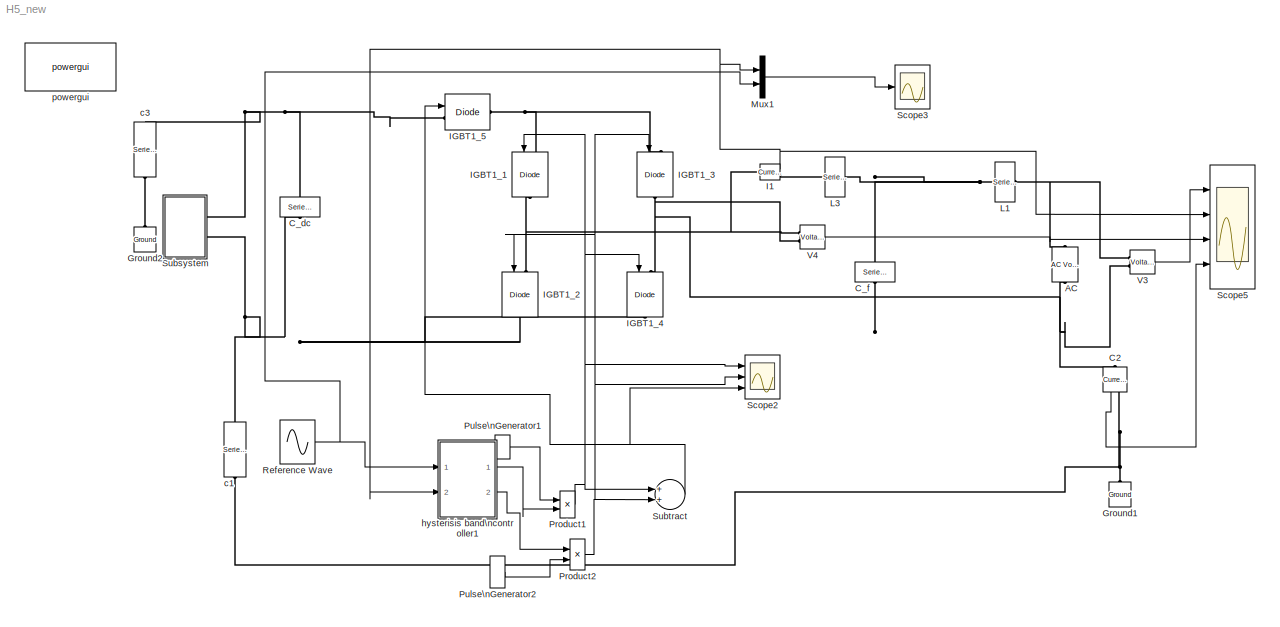
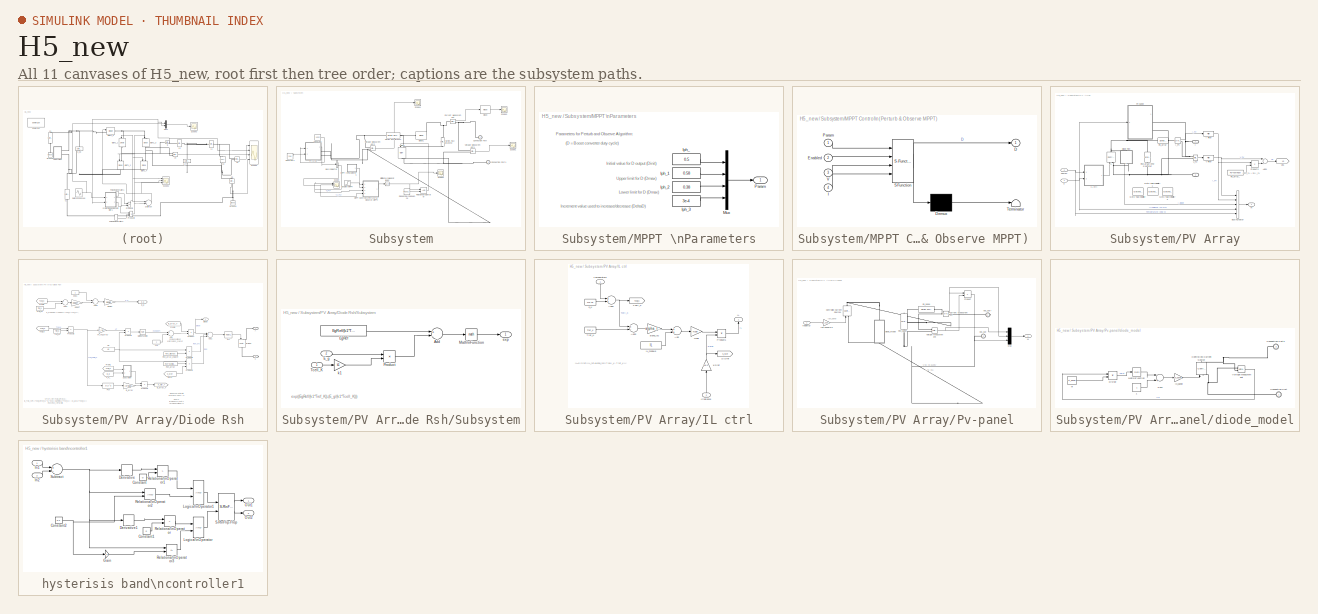
[diagram: thumbnail index - all 11 canvases of the model, root first then tree order]
MODEL H5_new
KIND model
BLOCK [Reference] AC  REF=powerlib/Electrical\nSources/AC Voltage Source
  Amplitude = 220
  BusType = swing
  Frequency = 50
  Measurements = Voltage
  Phase = 0
  Ports = [0, 0, 0, 0, 0, 1, 1]
  Pref = 10e3
  Qmax = +inf
  Qmin = -inf
  Qref = 0
  SID = 1
  SampleTime = 0
  SourceBlock = powerlib/Electrical\nSources/AC Voltage Source
  SourceProductBaseCode = PS
  SourceProductName = Simscape Electrical
  SourceType = AC Voltage Source
BLOCK [Reference] C2  REF=powerlib/Measurements/Current Measurement
  OutputType = Complex
  PSBequivalent = 0
  PhasorSimulation = off
  Ports = [0, 1, 0, 0, 0, 1, 1]
  SID = 2
  SourceBlock = powerlib/Measurements/Current Measurement
  SourceProductBaseCode = PS
  SourceProductName = Simscape Electrical
  SourceType = Current Measurement
BLOCK [Reference] C_dc  REF=powerlib/Elements/Series RLC Branch
  BranchType = RC
  Capacitance = 250e-6
  Inductance = 4e-3
  InitialCurrent = 0
  InitialVoltage = 0
  LConnTagsString = __new0
  Measurements = None
  Ports = [0, 0, 0, 0, 0, 1, 1]
  RConnTagsString = __new0
  Resistance = 1e-3
  SID = 3
  SetiL0 = off
  Setx0 = off
  SourceBlock = powerlib/Elements/Series RLC Branch
  SourceProductBaseCode = PS
  SourceProductName = Simscape Electrical
  SourceType = Series RLC Branch
BLOCK [Reference] C_f  REF=powerlib/Elements/Series RLC Branch
  BranchType = RC
  Capacitance = 3.45e-6
  Inductance = 4e-3
  InitialCurrent = 0
  InitialVoltage = 0
  LConnTagsString = __new0
  Measurements = None
  Ports = [0, 0, 0, 0, 0, 1, 1]
  RConnTagsString = __new0
  Resistance = 1e-3
  SID = 4
  SetiL0 = off
  Setx0 = off
  SourceBlock = powerlib/Elements/Series RLC Branch
  SourceProductBaseCode = PS
  SourceProductName = Simscape Electrical
  SourceType = Series RLC Branch
BLOCK [Reference] Ground1  REF=powerlib/Elements/Ground
  LConnTagsString = a
  Ports = [0, 0, 0, 0, 0, 1]
  SID = 5
  SourceBlock = powerlib/Elements/Ground
  SourceProductBaseCode = PS
  SourceProductName = Simscape Electrical
  SourceType = Ground
BLOCK [Reference] Ground2  REF=powerlib/Elements/Ground
  LConnTagsString = a
  Ports = [0, 0, 0, 0, 0, 1]
  SID = 6
  SourceBlock = powerlib/Elements/Ground
  SourceProductBaseCode = PS
  SourceProductName = Simscape Electrical
  SourceType = Ground
BLOCK [Reference] I1  REF=powerlib/Measurements/Current Measurement
  AttributesFormatString = \\n
  OutputType = Magnitude
  PSBequivalent = 0
  PhasorSimulation = off
  Ports = [0, 1, 0, 0, 0, 1, 1]
  SID = 7
  SourceBlock = powerlib/Measurements/Current Measurement
  SourceProductBaseCode = PS
  SourceProductName = Simscape Electrical
  SourceType = Current Measurement
  Tag = PoWeRsYsTeMmEaSuReMeNt
BLOCK [Reference] IGBT1_1  REF=powerlib/Power\nElectronics/IGBT//Diode
  Cs = inf
  Measurements = off
  Ports = [1, 0, 0, 0, 0, 1, 1]
  Ron = 1e-3
  Rs = 1e5
  SID = 9
  SourceBlock = powerlib/Power\nElectronics/IGBT//Diode
  SourceProductBaseCode = PS
  SourceProductName = Simscape Electrical
  SourceType = IGBT/Diode
BLOCK [Reference] IGBT1_2  REF=powerlib/Power\nElectronics/IGBT//Diode
  Cs = inf
  Measurements = off
  Ports = [1, 0, 0, 0, 0, 1, 1]
  Ron = 1e-3
  Rs = 1e5
  SID = 10
  SourceBlock = powerlib/Power\nElectronics/IGBT//Diode
  SourceProductBaseCode = PS
  SourceProductName = Simscape Electrical
  SourceType = IGBT/Diode
BLOCK [Reference] IGBT1_3  REF=powerlib/Power\nElectronics/IGBT//Diode
  Cs = inf
  Measurements = off
  Ports = [1, 0, 0, 0, 0, 1, 1]
  Ron = 1e-3
  Rs = 1e5
  SID = 11
  SourceBlock = powerlib/Power\nElectronics/IGBT//Diode
  SourceProductBaseCode = PS
  SourceProductName = Simscape Electrical
  SourceType = IGBT/Diode
BLOCK [Reference] IGBT1_4  REF=powerlib/Power\nElectronics/IGBT//Diode
  Cs = inf
  Measurements = off
  Ports = [1, 0, 0, 0, 0, 1, 1]
  Ron = 1e-3
  Rs = 1e5
  SID = 12
  SourceBlock = powerlib/Power\nElectronics/IGBT//Diode
  SourceProductBaseCode = PS
  SourceProductName = Simscape Electrical
  SourceType = IGBT/Diode
BLOCK [Reference] IGBT1_5  REF=powerlib/Power\nElectronics/IGBT//Diode
  Cs = inf
  Measurements = off
  Ports = [1, 0, 0, 0, 0, 1, 1]
  Ron = 1e-3
  Rs = 1e5
  SID = 13
  SourceBlock = powerlib/Power\nElectronics/IGBT//Diode
  SourceProductBaseCode = PS
  SourceProductName = Simscape Electrical
  SourceType = IGBT/Diode
BLOCK [Reference] L1  REF=powerlib/Elements/Series RLC Branch
  BranchType = RL
  Capacitance = 1e-6
  Inductance = 5.7e-3
  InitialCurrent = 0
  InitialVoltage = 0
  LConnTagsString = __new0
  Measurements = None
  Ports = [0, 0, 0, 0, 0, 1, 1]
  RConnTagsString = __new0
  Resistance = 1e-3
  SID = 14
  SetiL0 = off
  Setx0 = off
  SourceBlock = powerlib/Elements/Series RLC Branch
  SourceProductBaseCode = PS
  SourceProductName = Simscape Electrical
  SourceType = Series RLC Branch
BLOCK [Reference] L3  REF=powerlib/Elements/Series RLC Branch
  BranchType = RL
  Capacitance = 1e-6
  Inductance = 17.7e-3
  InitialCurrent = 0
  InitialVoltage = 0
  LConnTagsString = __new0
  Measurements = None
  Ports = [0, 0, 0, 0, 0, 1, 1]
  RConnTagsString = __new0
  Resistance = 1e-3
  SID = 15
  SetiL0 = off
  Setx0 = off
  SourceBlock = powerlib/Elements/Series RLC Branch
  SourceProductBaseCode = PS
  SourceProductName = Simscape Electrical
  SourceType = Series RLC Branch
BLOCK [Mux] Mux1
  DisplayOption = bar
  Inputs = 2
  Ports = [2, 1]
  SID = 16
BLOCK [Product] Product1
  InputSameDT = off
  OutDataTypeStr = Inherit: Inherit via internal rule
  Ports = [2, 1]
  SID = 17
  SaturateOnIntegerOverflow = off
BLOCK [Product] Product2
  InputSameDT = off
  OutDataTypeStr = Inherit: Inherit via internal rule
  Ports = [2, 1]
  SID = 18
  SaturateOnIntegerOverflow = off
BLOCK [DiscretePulseGenerator] Pulse\nGenerator1
  Period = 20e-3
  Ports = [0, 1]
  PulseType = Time based
  PulseWidth = 49.5
  SID = 19
BLOCK [DiscretePulseGenerator] Pulse\nGenerator2
  Period = 20e-3
  PhaseDelay = 10e-3
  Ports = [0, 1]
  PulseType = Time based
  PulseWidth = 49.5
  SID = 20
BLOCK [Sin] Reference Wave
  Amplitude = 2
  Frequency = 2*pi*50
  Ports = [0, 1]
  SID = 21
  SampleTime = 0
BLOCK [Scope] Scope2
  Floating = off
  NumInputPorts = 3
  Ports = [3]
  SID = 22
  ScopeSpecificationString = Simulink.scopes.TimeScopeBlockCfg('CurrentConfiguration', extmgr.ConfigurationSet(extmgr.Configuration('Core','General UI',true),extmgr.Configuration('Core','Source UI',true),extmgr.Configuration('Sources','WiredSimulink',true,'DataLogging',true,'DataLoggingVariableName','sps1phPWM1_str1','DataLoggingSaveFormat','StructureWithTime','DataLoggingMaxPoints','500000','DataLoggingDecimation','1','DataL...<+3149ch>
BLOCK [Scope] Scope3
  Floating = off
  NumInputPorts = 1
  Ports = [1]
  SID = 23
  ScopeSpecificationString = Simulink.scopes.TimeScopeBlockCfg('CurrentConfiguration', extmgr.ConfigurationSet(extmgr.Configuration('Core','General UI',true),extmgr.Configuration('Core','Source UI',true),extmgr.Configuration('Sources','WiredSimulink',true,'DataLogging',true,'DataLoggingVariableName','sps1phPWM1_str','DataLoggingSaveFormat','StructureWithTime','DataLoggingMaxPoints','500000','DataLoggingDecimation','1','DataLo...<+1919ch>
BLOCK [Scope] Scope5
  Floating = off
  NumInputPorts = 4
  Ports = [4]
  SID = 24
  ScopeSpecificationString = Simulink.scopes.TimeScopeBlockCfg('CurrentConfiguration', extmgr.ConfigurationSet(extmgr.Configuration('Core','General UI',true),extmgr.Configuration('Core','Source UI',true),extmgr.Configuration('Sources','WiredSimulink',true,'DataLogging',true,'DataLoggingVariableName','sps1phPWM1_str2','DataLoggingSaveFormat','StructureWithTime','DataLoggingMaxPoints','500000','DataLoggingDecimation','1','DataL...<+3899ch>
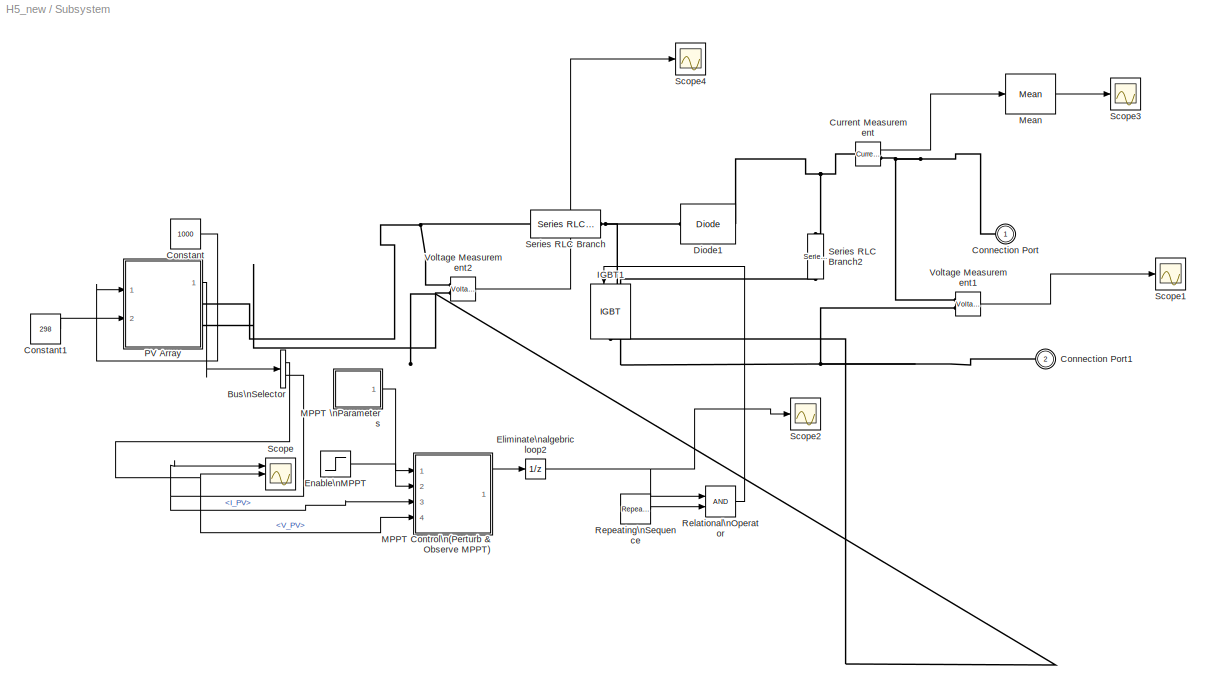
BLOCK [SubSystem] Subsystem
  Ports = [0, 0, 0, 0, 0, 0, 2]
  RequestExecContextInheritance = off
  SID = 152
BLOCK [BusSelector] Subsystem/Bus\nSelector
  OutputAsBus = off
  OutputSignals = V_PV,I_PV
  Ports = [1, 2]
  SID = 247
BLOCK [PMIOPort] Subsystem/Connection Port
  SID = 237
  Side = Right
BLOCK [PMIOPort] Subsystem/Connection Port1
  Port = 2
  SID = 238
  Side = Right
BLOCK [Constant] Subsystem/Constant
  SID = 153
  Value = 1000
BLOCK [Constant] Subsystem/Constant1
  SID = 244
  Value = 298
BLOCK [Reference] Subsystem/Current Measurement  REF=powerlib/Measurements/Current Measurement
  OutputType = Complex
  PSBequivalent = 0
  PhasorSimulation = off
  Ports = [0, 1, 0, 0, 0, 1, 1]
  SID = 240
  SourceBlock = powerlib/Measurements/Current Measurement
  SourceProductBaseCode = PS
  SourceProductName = Simscape Electrical
  SourceType = Current Measurement
  UserDataPersistent = on
BLOCK [Reference] Subsystem/Diode1  REF=powerlib/Power\nElectronics/Diode
  Cs = 250e-9
  IC = 0
  Lon = 0
  Measurements = off
  Ports = [0, 0, 0, 0, 0, 1, 1]
  Ron = 0.001
  Rs = 500
  SID = 155
  SourceBlock = powerlib/Power\nElectronics/Diode
  SourceProductBaseCode = PS
  SourceProductName = Simscape Electrical
  SourceType = Diode
  UseSnubber = off
  Vf = 0.8
BLOCK [UnitDelay] Subsystem/Eliminate\nalgebric loop2
  InputProcessing = Elements as channels (sample based)
  SID = 156
  SampleTime = Ts_Control
BLOCK [Step] Subsystem/Enable\nMPPT
  SID = 157
  SampleTime = 0
  Time = 0.3
BLOCK [Reference] Subsystem/IGBT1  REF=powerlib/Power\nElectronics/IGBT
  Cs = inf
  IC = 0
  Lon = 0
  Measurements = off
  Ports = [1, 0, 0, 0, 0, 1, 1]
  Ron = 0.001
  Rs = 1e5
  SID = 161
  SourceBlock = powerlib/Power\nElectronics/IGBT
  SourceProductBaseCode = PS
  SourceProductName = Simscape Electrical
  SourceType = IGBT
  Tf = 1e-6
  Tt = 2e-6
  Vf = 1
BLOCK [SubSystem] Subsystem/MPPT Control\n(Perturb & Observe MPPT) 
  ErrorFcn = Stateflow.Translate.translate
  PermitHierarchicalResolution = ExplicitOnly
  Ports = [4, 1]
  RequestExecContextInheritance = off
  SFBlockType = MATLAB Function
  SID = 175
  TreatAsAtomicUnit = on
BLOCK [Demux] Subsystem/MPPT Control\n(Perturb & Observe MPPT) / Demux 
  Outputs = 1
  Ports = [1, 1]
  SID = 175::118
BLOCK [S-Function] Subsystem/MPPT Control\n(Perturb & Observe MPPT) / SFunction 
  EnableBusSupport = on
  FunctionName = sf_sfun
  PortCounts = [4 2]
  Ports = [4, 2]
  SFcnIsStateOwnerBlock = off
  SFunctionDeploymentMode = off
  SID = 175::117
  Tag = Stateflow S-Function H5_new 4
BLOCK [Terminator] Subsystem/MPPT Control\n(Perturb & Observe MPPT) / Terminator 
  SID = 175::119
BLOCK [Outport] Subsystem/MPPT Control\n(Perturb & Observe MPPT) /D
  IconDisplay = Port number
  SID = 175::35
BLOCK [Inport] Subsystem/MPPT Control\n(Perturb & Observe MPPT) /Enabled
  IconDisplay = Port number
  Port = 2
  SID = 175::91
BLOCK [Inport] Subsystem/MPPT Control\n(Perturb & Observe MPPT) /I
  IconDisplay = Port number
  Port = 4
  SID = 175::1
BLOCK [Inport] Subsystem/MPPT Control\n(Perturb & Observe MPPT) /Param
  IconDisplay = Port number
  SID = 175::90
BLOCK [Inport] Subsystem/MPPT Control\n(Perturb & Observe MPPT) /V
  IconDisplay = Port number
  Port = 3
  SID = 175::85
BLOCK [SubSystem] Subsystem/MPPT \nParameters
  Ports = [0, 1]
  RequestExecContextInheritance = off
  SID = 162
BLOCK [Constant] Subsystem/MPPT \nParameters/Iph_
  SID = 163
  Value = 0.5
BLOCK [Constant] Subsystem/MPPT \nParameters/Iph_1
  SID = 164
  Value = 0.58
BLOCK [Constant] Subsystem/MPPT \nParameters/Iph_2
  SID = 165
  Value = 0.38
BLOCK [Constant] Subsystem/MPPT \nParameters/Iph_3
  SID = 166
  Value = 3e-4
BLOCK [Mux] Subsystem/MPPT \nParameters/Mux
  DisplayOption = bar
  Ports = [4, 1]
  SID = 167
BLOCK [Outport] Subsystem/MPPT \nParameters/Param
  IconDisplay = Port number
  SID = 168
BLOCK [Reference] Subsystem/Mean  REF=powerlib_meascontrol/Measurements/Mean
  Freq = 50
  Ports = [1, 1]
  SID = 242
  SourceBlock = powerlib_meascontrol/Measurements/Mean
  SourceProductBaseCode = PS
  SourceProductName = Simscape Electrical
  SourceType = Mean
  Ts = 5e-4
  Vinit = 0
BLOCK [SubSystem] Subsystem/PV Array
  AncestorBlock = re_lib/Solar/PV Array
  CloseFcn = sps_rtmsupport('CloseFcn',gcbh);
  CopyFcn = sps_rtmsupport('CopyFcn',gcbh);
  DeleteFcn = sps_rtmsupport('DeleteFcn',gcbh);
  DialogController = POWERSYS.PowerSysDialog
  LoadFcn = sps_rtmsupport('LoadFcn',gcbh);
  ModelCloseFcn = sps_rtmsupport('ModelCloseFcn',gcbh);
  NameChangeFcn = sps_rtmsupport('NameChangeFcn',gcbh);
  OpenFcn = %assignin('base','PVMaskOpening',1);\n%open_system(gcb,'mask')\n%assignin('base','PVMaskOpening',0);\nsps_rtmsupport('OpenFcn',gcbh, [3 6 7 23]);
  Ports = [2, 1, 0, 0, 0, 0, 2]
  PostSaveFcn = sps_rtmsupport('PostSaveFcn',gcbh);
  PreCopyFcn = sps_rtmsupport('PreCopyFcn',gcbh);
  PreDeleteFcn = sps_rtmsupport('PreDeleteFcn',gcbh);
  PreSaveFcn = sps_rtmsupport('PreSaveFcn',gcbh);
  RequestExecContextInheritance = off
  SID = 243
  StartFcn = sps_rtmsupport('StartFcn',gcbh);
  StopFcn = sps_rtmsupport('StopFcn',gcbh);
  UndoDeleteFcn = sps_rtmsupport('UndoDeleteFcn',gcbh);
BLOCK [PMIOPort] Subsystem/PV Array/+
  SID = 243:333
  Side = Right
BLOCK [PMIOPort] Subsystem/PV Array/-
  Port = 2
  SID = 243:334
  Side = Right
BLOCK [Sum] Subsystem/PV Array/Add1
  InputSameDT = off
  OutDataTypeStr = Inherit: Inherit via internal rule
  Ports = [2, 1]
  SID = 243:584
  SaturateOnIntegerOverflow = off
BLOCK [BusCreator] Subsystem/PV Array/Bus\nCreator
  DisplayOption = bar
  InheritFromInputs = on
  Inputs = 5
  Ports = [5, 1]
  SID = 243:587
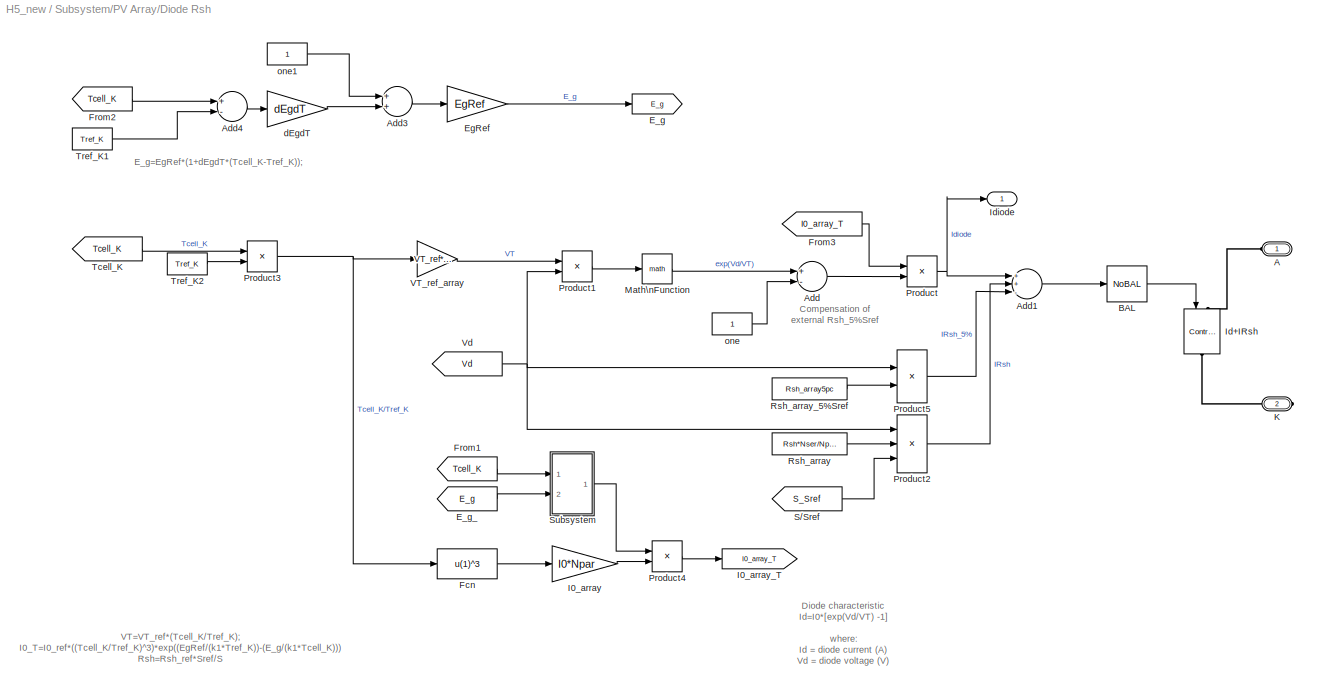
BLOCK [SubSystem] Subsystem/PV Array/Diode Rsh
  Ports = [0, 1, 0, 0, 0, 1, 1]
  RequestExecContextInheritance = off
  SID = 243:588
BLOCK [PMIOPort] Subsystem/PV Array/Diode Rsh/A
  SID = 243:655
  Side = Left
BLOCK [Sum] Subsystem/PV Array/Diode Rsh/Add
  InputSameDT = off
  Inputs = +-
  OutDataTypeStr = Inherit: Inherit via internal rule
  Ports = [2, 1]
  SID = 243:613
  SaturateOnIntegerOverflow = off
BLOCK [Sum] Subsystem/PV Array/Diode Rsh/Add1
  InputSameDT = off
  Inputs = ++-
  OutDataTypeStr = Inherit: Inherit via internal rule
  Ports = [3, 1]
  SID = 243:614
  SaturateOnIntegerOverflow = off
BLOCK [Sum] Subsystem/PV Array/Diode Rsh/Add3
  InputSameDT = off
  OutDataTypeStr = Inherit: Inherit via internal rule
  Ports = [2, 1]
  SID = 243:615
  SaturateOnIntegerOverflow = off
BLOCK [Sum] Subsystem/PV Array/Diode Rsh/Add4
  InputSameDT = off
  Inputs = +-
  OutDataTypeStr = Inherit: Inherit via internal rule
  Ports = [2, 1]
  SID = 243:616
  SaturateOnIntegerOverflow = off
BLOCK [Reference] Subsystem/PV Array/Diode Rsh/BAL  REF=spsPVarrayModel/NoBAL
  AllowZeroVariantControls = off
  GeneratePreprocessorConditionals = off
  Ports = [1, 1]
  PropagateVariantConditions = off
  SID = 243:1335
  ShowPortLabels = FromPortIcon
  SourceBlock = spsPVarrayModel/NoBAL
  SourceType = SubSystem
  SystemSampleTime = -1
  VariantControl = NoBAL
BLOCK [Goto] Subsystem/PV Array/Diode Rsh/E_g
  GotoTag = E_g
  SID = 243:617
BLOCK [From] Subsystem/PV Array/Diode Rsh/E_g_
  GotoTag = E_g
  SID = 243:618
BLOCK [Gain] Subsystem/PV Array/Diode Rsh/EgRef
  Gain = EgRef
  OutDataTypeStr = Inherit: Inherit via internal rule
  ParamDataTypeStr = Inherit: Inherit via internal rule
  SID = 243:619
  SaturateOnIntegerOverflow = off
BLOCK [Fcn] Subsystem/PV Array/Diode Rsh/Fcn
  Expr = u(1)^3
  SID = 243:620
BLOCK [From] Subsystem/PV Array/Diode Rsh/From1
  GotoTag = Tcell_K
  SID = 243:621
  TagVisibility = scoped
BLOCK [From] Subsystem/PV Array/Diode Rsh/From2
  GotoTag = Tcell_K
  SID = 243:622
  TagVisibility = scoped
BLOCK [From] Subsystem/PV Array/Diode Rsh/From3
  GotoTag = I0_array_T
  SID = 243:623
BLOCK [Gain] Subsystem/PV Array/Diode Rsh/I0_array
  Gain = I0*Npar
  OutDataTypeStr = Inherit: Inherit via internal rule
  ParamDataTypeStr = Inherit: Inherit via internal rule
  SID = 243:624
  SaturateOnIntegerOverflow = off
BLOCK [Goto] Subsystem/PV Array/Diode Rsh/I0_array_T
  GotoTag = I0_array_T
  SID = 243:625
BLOCK [Reference] Subsystem/PV Array/Diode Rsh/Id+IRsh  REF=powerlib/Electrical\nSources/Controlled Current Source
  Amplitude = 0
  Frequency = 0
  Initialize = on
  Measurements = None
  Phase = 0
  Ports = [1, 0, 0, 0, 0, 1, 1]
  SID = 243:626
  SourceBlock = powerlib/Electrical\nSources/Controlled Current Source
  SourceProductBaseCode = PS
  SourceProductName = Simscape Electrical
  SourceType = Controlled Current Source
  Source_Type = AC
BLOCK [Outport] Subsystem/PV Array/Diode Rsh/Idiode
  IconDisplay = Port number
  SID = 243:657
BLOCK [PMIOPort] Subsystem/PV Array/Diode Rsh/K
  Port = 2
  SID = 243:656
  Side = Right
BLOCK [Math] Subsystem/PV Array/Diode Rsh/Math\nFunction
  Ports = [1, 1]
  SID = 243:627
BLOCK [Product] Subsystem/PV Array/Diode Rsh/Product
  InputSameDT = off
  OutDataTypeStr = Inherit: Inherit via internal rule
  Ports = [2, 1]
  SID = 243:628
  SaturateOnIntegerOverflow = off
BLOCK [Product] Subsystem/PV Array/Diode Rsh/Product1
  InputSameDT = off
  Inputs = /*
  OutDataTypeStr = Inherit: Inherit via internal rule
  Ports = [2, 1]
  SID = 243:629
  SaturateOnIntegerOverflow = off
BLOCK [Product] Subsystem/PV Array/Diode Rsh/Product2
  InputSameDT = off
  Inputs = */*
  OutDataTypeStr = Inherit: Inherit via internal rule
  Ports = [3, 1]
  SID = 243:630
  SaturateOnIntegerOverflow = off
BLOCK [Product] Subsystem/PV Array/Diode Rsh/Product3
  InputSameDT = off
  Inputs = */
  OutDataTypeStr = Inherit: Inherit via internal rule
  Ports = [2, 1]
  SID = 243:631
  SaturateOnIntegerOverflow = off
BLOCK [Product] Subsystem/PV Array/Diode Rsh/Product4
  InputSameDT = off
  Inputs = **
  OutDataTypeStr = Inherit: Inherit via internal rule
  Ports = [2, 1]
  SID = 243:632
  SaturateOnIntegerOverflow = off
BLOCK [Product] Subsystem/PV Array/Diode Rsh/Product5
  InputSameDT = off
  Inputs = */
  OutDataTypeStr = Inherit: Inherit via internal rule
  Ports = [2, 1]
  SID = 243:633
  SaturateOnIntegerOverflow = off
BLOCK [Constant] Subsystem/PV Array/Diode Rsh/Rsh_array
  SID = 243:634
  Value = Rsh*Nser/Npar
BLOCK [Constant] Subsystem/PV Array/Diode Rsh/Rsh_array_5%Sref
  SID = 243:635
  Value = Rsh_array5pc
BLOCK [From] Subsystem/PV Array/Diode Rsh/S//Sref
  GotoTag = S_Sref
  SID = 243:636
  TagVisibility = scoped
BLOCK [SubSystem] Subsystem/PV Array/Diode Rsh/Subsystem
  Ports = [2, 1]
  RequestExecContextInheritance = off
  SID = 243:637
BLOCK [Sum] Subsystem/PV Array/Diode Rsh/Subsystem/Add
  InputSameDT = off
  Inputs = +-
  OutDataTypeStr = Inherit: Inherit via internal rule
  Ports = [2, 1]
  SID = 243:640
  SaturateOnIntegerOverflow = off
BLOCK [Inport] Subsystem/PV Array/Diode Rsh/Subsystem/E_g
  IconDisplay = Port number
  Port = 2
  SID = 243:639
BLOCK [Constant] Subsystem/PV Array/Diode Rsh/Subsystem/EgRef
  SID = 243:641
  Value = EgRef/(k1*Tref_K)
BLOCK [Math] Subsystem/PV Array/Diode Rsh/Subsystem/Math\nFunction
  Ports = [1, 1]
  SID = 243:642
BLOCK [Product] Subsystem/PV Array/Diode Rsh/Subsystem/Product
  InputSameDT = off
  Inputs = */
  OutDataTypeStr = Inherit: Inherit via internal rule
  Ports = [2, 1]
  RndMeth = Floor
  SID = 243:643
  SaturateOnIntegerOverflow = off
BLOCK [Inport] Subsystem/PV Array/Diode Rsh/Subsystem/Tcell_K
  IconDisplay = Port number
  SID = 243:638
BLOCK [Outport] Subsystem/PV Array/Diode Rsh/Subsystem/exp
  IconDisplay = Port number
  SID = 243:645
BLOCK [Gain] Subsystem/PV Array/Diode Rsh/Subsystem/k1
  Gain = k1
  OutDataTypeStr = Inherit: Inherit via internal rule
  ParamDataTypeStr = Inherit: Inherit via internal rule
  SID = 243:644
  SaturateOnIntegerOverflow = off
BLOCK [From] Subsystem/PV Array/Diode Rsh/Tcell_K
  GotoTag = Tcell_K
  SID = 243:647
  TagVisibility = scoped
BLOCK [Constant] Subsystem/PV Array/Diode Rsh/Tref_K1
  SID = 243:648
  Value = Tref_K
BLOCK [Constant] Subsystem/PV Array/Diode Rsh/Tref_K2
  SID = 243:649
  Value = Tref_K
BLOCK [Gain] Subsystem/PV Array/Diode Rsh/VT_ref_array
  Gain = VT_ref*Nser
  OutDataTypeStr = Inherit: Inherit via internal rule
  ParamDataTypeStr = Inherit: Inherit via internal rule
  SID = 243:650
  SaturateOnIntegerOverflow = off
BLOCK [From] Subsystem/PV Array/Diode Rsh/Vd
  GotoTag = Vd
  SID = 243:651
  TagVisibility = scoped
BLOCK [Gain] Subsystem/PV Array/Diode Rsh/dEgdT
  Gain = dEgdT
  OutDataTypeStr = Inherit: Inherit via internal rule
  ParamDataTypeStr = Inherit: Inherit via internal rule
  SID = 243:652
  SaturateOnIntegerOverflow = off
BLOCK [Constant] Subsystem/PV Array/Diode Rsh/one
  SID = 243:653
BLOCK [Constant] Subsystem/PV Array/Diode Rsh/one1
  SID = 243:654
BLOCK [GotoTagVisibility] Subsystem/PV Array/Goto Tag\nVisibility
  GotoTag = S_Sref
  SID = 243:589
BLOCK [GotoTagVisibility] Subsystem/PV Array/Goto Tag\nVisibility1
  GotoTag = Vd
  SID = 243:590
BLOCK [GotoTagVisibility] Subsystem/PV Array/Goto Tag\nVisibility2
  GotoTag = Tcell_K
  SID = 243:591
BLOCK [Reference] Subsystem/PV Array/I Filter  REF=spsPVarrayModel/Filter
  AllowZeroVariantControls = off
  GeneratePreprocessorConditionals = off
  Ports = [1, 1]
  PropagateVariantConditions = off
  SID = 243:1336
  ShowPortLabels = FromPortIcon
  SourceBlock = spsPVarrayModel/Filter
  SourceType = SubSystem
  SystemSampleTime = -1
  VariantControl = Variant1
BLOCK [Reference] Subsystem/PV Array/IL  REF=powerlib/Electrical\nSources/Controlled Current Source
  Amplitude = 0
  Frequency = 0
  Initialize = on
  Measurements = None
  Phase = 0
  Ports = [1, 0, 0, 0, 0, 1, 1]
  SID = 243:592
  SourceBlock = powerlib/Electrical\nSources/Controlled Current Source
  SourceProductBaseCode = PS
  SourceProductName = Simscape Electrical
  SourceType = Controlled Current Source
  Source_Type = AC
BLOCK [SubSystem] Subsystem/PV Array/IL ctrl
  Ports = [2, 1]
  RequestExecContextInheritance = off
  SID = 243:667
BLOCK [Constant] Subsystem/PV Array/IL ctrl/0_K
  SID = 243:581
  Value = 273.15
BLOCK [Gain] Subsystem/PV Array/IL ctrl/1//Sref
  Gain = 1e-3
  OutDataTypeStr = Inherit: Inherit via internal rule
  ParamDataTypeStr = Inherit: Inherit via internal rule
  SID = 243:582
  SaturateOnIntegerOverflow = off
BLOCK [Sum] Subsystem/PV Array/IL ctrl/Add
  InputSameDT = off
  OutDataTypeStr = Inherit: Inherit via internal rule
  Ports = [2, 1]
  SID = 243:583
  SaturateOnIntegerOverflow = off
BLOCK [Sum] Subsystem/PV Array/IL ctrl/Add2
  InputSameDT = off
  OutDataTypeStr = Inherit: Inherit via internal rule
  Ports = [2, 1]
  SID = 243:585
  SaturateOnIntegerOverflow = off
BLOCK [Sum] Subsystem/PV Array/IL ctrl/Add3
  InputSameDT = off
  Inputs = +-
  OutDataTypeStr = Inherit: Inherit via internal rule
  Ports = [2, 1]
  SID = 243:586
  SaturateOnIntegerOverflow = off
BLOCK [Outport] Subsystem/PV Array/IL ctrl/IL
  IconDisplay = Port number
  SID = 243:670
BLOCK [Constant] Subsystem/PV Array/IL ctrl/IL_module
  SID = 243:593
  Value = IL
BLOCK [Inport] Subsystem/PV Array/IL ctrl/Irradiance
  IconDisplay = Port number
  Port = 2
  SID = 243:669
BLOCK [Gain] Subsystem/PV Array/IL ctrl/Npar
  Gain = Npar
  OutDataTypeStr = Inherit: Inherit via internal rule
  ParamDataTypeStr = Inherit: Inherit via internal rule
  SID = 243:595
  SaturateOnIntegerOverflow = off
BLOCK [Product] Subsystem/PV Array/IL ctrl/Product1
  InputSameDT = off
  Inputs = **
  OutDataTypeStr = Inherit: Inherit via internal rule
  Ports = [2, 1]
  SID = 243:596
  SaturateOnIntegerOverflow = off
BLOCK [Goto] Subsystem/PV Array/IL ctrl/S//Sref
  GotoTag = S_Sref
  SID = 243:601
  TagVisibility = scoped
BLOCK [Goto] Subsystem/PV Array/IL ctrl/Tcell_K
  GotoTag = Tcell_K
  SID = 243:602
  TagVisibility = scoped
BLOCK [Inport] Subsystem/PV Array/IL ctrl/Temperature
  IconDisplay = Port number
  SID = 243:668
BLOCK [Constant] Subsystem/PV Array/IL ctrl/Tref_K
  SID = 243:603
  Value = Tref_K
BLOCK [Gain] Subsystem/PV Array/IL ctrl/alpha_Isc
  Gain = alpha_Isc
  OutDataTypeStr = Inherit: Inherit via internal rule
  ParamDataTypeStr = Inherit: Inherit via internal rule
  SID = 243:606
  SaturateOnIntegerOverflow = off
BLOCK [Reference] Subsystem/PV Array/I_PV  REF=powerlib/Measurements/Current Measurement
  OutputType = Complex
  PSBequivalent = 0
  PhasorSimulation = off
  Ports = [0, 1, 0, 0, 0, 1, 1]
  SID = 243:594
  SourceBlock = powerlib/Measurements/Current Measurement
  SourceProductBaseCode = PS
  SourceProductName = Simscape Electrical
  SourceType = Current Measurement
BLOCK [Product] Subsystem/PV Array/Product2
  InputSameDT = off
  Inputs = **
  OutDataTypeStr = Inherit: Inherit via internal rule
  Ports = [2, 1]
  SID = 243:597
  SaturateOnIntegerOverflow = off
BLOCK [SubSystem] Subsystem/PV Array/Pv-panel
  Ports = [1, 1, 0, 0, 0, 0, 2]
  RequestExecContextInheritance = off
  SID = 243:1338
BLOCK [Reference] Subsystem/PV Array/Pv-panel/Controlled Current Source1  REF=powerlib/Electrical\nSources/Controlled Current Source
  Amplitude = 0
  Frequency = 0
  Initialize = on
  Measurements = None
  Phase = 0
  Ports = [1, 0, 0, 0, 0, 1, 1]
  SID = 243:1340
  SourceBlock = powerlib/Electrical\nSources/Controlled Current Source
  SourceProductBaseCode = PS
  SourceProductName = Simscape Electrical
  SourceType = Controlled Current Source
  Source_Type = AC
BLOCK [Reference] Subsystem/PV Array/Pv-panel/Current Measurement  REF=powerlib/Measurements/Current Measurement
  OutputType = Complex
  PSBequivalent = 0
  PhasorSimulation = off
  Ports = [0, 1, 0, 0, 0, 1, 1]
  SID = 243:1341
  SourceBlock = powerlib/Measurements/Current Measurement
  SourceProductBaseCode = PS
  SourceProductName = Simscape Electrical
  SourceType = Current Measurement
BLOCK [Gain] Subsystem/PV Array/Pv-panel/Iph-panel//G0
  Gain = Iph_panel/G0
  OutDataTypeStr = Inherit: Inherit via internal rule
  ParamDataTypeStr = Inherit: Inherit via internal rule
  SID = 243:1342
  SaturateOnIntegerOverflow = off
BLOCK [Outport] Subsystem/PV Array/Pv-panel/M
  IconDisplay = Port number
  SID = 243:1361
BLOCK [Mux] Subsystem/PV Array/Pv-panel/Mux
  DisplayOption = bar
  Inputs = 3
  Ports = [3, 1]
  SID = 243:1343
BLOCK [Product] Subsystem/PV Array/Pv-panel/Product
  InputSameDT = off
  OutDataTypeStr = Inherit: Inherit via internal rule
  Ports = [2, 1]
  RndMeth = Floor
  SID = 243:1344
  SaturateOnIntegerOverflow = off
BLOCK [Reference] Subsystem/PV Array/Pv-panel/Rs_panel  REF=powerlib/Elements/Series RLC Branch
  BranchType = R
  Capacitance = 1e-6
  Inductance = 1e-3
  InitialCurrent = 0
  InitialVoltage = 0
  LConnTagsString = __new0
  Measurements = None
  Ports = [0, 0, 0, 0, 0, 1, 1]
  RConnTagsString = __new0
  Resistance = Rs_panel
  SID = 243:1345
  SetiL0 = off
  Setx0 = off
  SourceBlock = powerlib/Elements/Series RLC Branch
  SourceProductBaseCode = PS
  SourceProductName = Simscape Electrical
  SourceType = Series RLC Branch
BLOCK [Reference] Subsystem/PV Array/Pv-panel/Rsh_panel  REF=powerlib/Elements/Series RLC Branch
  BranchType = R
  Capacitance = 1e-6
  Inductance = 1e-3
  InitialCurrent = 0
  InitialVoltage = 0
  LConnTagsString = __new0
  Measurements = None
  Ports = [0, 0, 0, 0, 0, 1, 1]
  RConnTagsString = __new0
  Resistance = Rsh_panel
  SID = 243:1346
  SetiL0 = off
  Setx0 = off
  SourceBlock = powerlib/Elements/Series RLC Branch
  SourceProductBaseCode = PS
  SourceProductName = Simscape Electrical
  SourceType = Series RLC Branch
BLOCK [PMIOPort] Subsystem/PV Array/Pv-panel/Vdc_out+
  SID = 243:1359
  Side = Right
BLOCK [PMIOPort] Subsystem/PV Array/Pv-panel/Vdc_out-
  Port = 2
  SID = 243:1360
  Side = Right
BLOCK [Reference] Subsystem/PV Array/Pv-panel/Voltage Measurement  REF=powerlib/Measurements/Voltage Measurement
  OutputType = Complex
  PSBequivalent = 0
  PhasorSimulation = off
  Ports = [0, 1, 0, 0, 0, 2]
  SID = 243:1347
  SourceBlock = powerlib/Measurements/Voltage Measurement
  SourceProductBaseCode = PS
  SourceProductName = Simscape Electrical
  SourceType = Voltage Measurement
BLOCK [SubSystem] Subsystem/PV Array/Pv-panel/diode_model
  Ports = [0, 0, 0, 0, 0, 1, 1]
  RequestExecContextInheritance = off
  SID = 243:1348
BLOCK [Constant] Subsystem/PV Array/Pv-panel/diode_model/1
  SID = 243:1349
BLOCK [PMIOPort] Subsystem/PV Array/Pv-panel/diode_model/Connection Port
  SID = 243:1357
  Side = Left
BLOCK [PMIOPort] Subsystem/PV Array/Pv-panel/diode_model/Connection Port1
  Port = 2
  SID = 243:1358
  Side = Right
BLOCK [Reference] Subsystem/PV Array/Pv-panel/diode_model/Controlled Current Source  REF=powerlib/Electrical\nSources/Controlled Current Source
  Amplitude = 0
  Frequency = 0
  Initialize = on
  Measurements = None
  Phase = 0
  Ports = [1, 0, 0, 0, 0, 1, 1]
  SID = 243:1350
  SourceBlock = powerlib/Electrical\nSources/Controlled Current Source
  SourceProductBaseCode = PS
  SourceProductName = Simscape Electrical
  SourceType = Controlled Current Source
  Source_Type = AC
BLOCK [Product] Subsystem/PV Array/Pv-panel/diode_model/Divide
  InputSameDT = off
  Inputs = */
  OutDataTypeStr = Inherit: Inherit via internal rule
  Ports = [2, 1]
  RndMeth = Floor
  SID = 243:1351
  SaturateOnIntegerOverflow = off
BLOCK [Gain] Subsystem/PV Array/Pv-panel/diode_model/I0_panel
  Gain = I0_panel
  OutDataTypeStr = Inherit: Inherit via internal rule
  ParamDataTypeStr = Inherit: Inherit via internal rule
  SID = 243:1352
  SaturateOnIntegerOverflow = off
BLOCK [Math] Subsystem/PV Array/Pv-panel/diode_model/Math\nFunction
  Ports = [1, 1]
  SID = 243:1353
BLOCK [Sum] Subsystem/PV Array/Pv-panel/diode_model/Sum
  InputSameDT = off
  Inputs = |+-
  OutDataTypeStr = Inherit: Inherit via internal rule
  Ports = [2, 1]
  SID = 243:1354
  SaturateOnIntegerOverflow = off
BLOCK [Reference] Subsystem/PV Array/Pv-panel/diode_model/Voltage Measurement  REF=powerlib/Measurements/Voltage Measurement
  OutputType = Complex
  PSBequivalent = 0
  PhasorSimulation = off
  Ports = [0, 1, 0, 0, 0, 2]
  SID = 243:1355
  SourceBlock = powerlib/Measurements/Voltage Measurement
  SourceProductBaseCode = PS
  SourceProductName = Simscape Electrical
  SourceType = Voltage Measurement
BLOCK [Constant] Subsystem/PV Array/Pv-panel/diode_model/vt
  SID = 243:1356
  Value = Vt_panel
BLOCK [Inport] Subsystem/PV Array/Pv-panel/iradian(g)
  IconDisplay = Port number
  SID = 243:1339
BLOCK [Reference] Subsystem/PV Array/Rs_array  REF=powerlib/Elements/Series RLC Branch
  BranchType = R
  Capacitance = 1e-6
  Inductance = 1e-3
  InitialCurrent = 0
  InitialVoltage = 0
  LConnTagsString = __new0
  Measurements = None
  Ports = [0, 0, 0, 0, 0, 1, 1]
  RConnTagsString = __new0
  Resistance = Rs*Nser/Npar
  SID = 243:598
  SetiL0 = off
  Setx0 = off
  SourceBlock = powerlib/Elements/Series RLC Branch
  SourceProductBaseCode = PS
  SourceProductName = Simscape Electrical
  SourceType = Series RLC Branch
BLOCK [Constant] Subsystem/PV Array/Rs_array_
  SID = 243:599
  Value = Rs*Nser/Npar
BLOCK [Reference] Subsystem/PV Array/Rsh_array\nFor 0.05*Sref  REF=powerlib/Elements/Series RLC Branch
  BranchType = R
  Capacitance = 1e-6
  Inductance = 1e-3
  InitialCurrent = 0
  InitialVoltage = 0
  LConnTagsString = __new0
  Measurements = None
  Ports = [0, 0, 0, 0, 0, 1, 1]
  RConnTagsString = __new0
  Resistance = Rsh_array5pc
  SID = 243:600
  SetiL0 = off
  Setx0 = off
  SourceBlock = powerlib/Elements/Series RLC Branch
  SourceProductBaseCode = PS
  SourceProductName = Simscape Electrical
  SourceType = Series RLC Branch
BLOCK [Inport] Subsystem/PV Array/S
  IconDisplay = Port number
  SID = 243:69
BLOCK [Inport] Subsystem/PV Array/TempC
  IconDisplay = Port number
  Port = 2
  SID = 243:70
BLOCK [Reference] Subsystem/PV Array/V Filter  REF=spsPVarrayModel/Filter
  AllowZeroVariantControls = off
  GeneratePreprocessorConditionals = off
  Ports = [1, 1]
  PropagateVariantConditions = off
  SID = 243:1337
  ShowPortLabels = FromPortIcon
  SourceBlock = spsPVarrayModel/Filter
  SourceType = SubSystem
  SystemSampleTime = -1
  VariantControl = Variant1
BLOCK [Reference] Subsystem/PV Array/V_PV  REF=powerlib/Measurements/Voltage Measurement
  OutputType = Complex
  PSBequivalent = 0
  PhasorSimulation = off
  Ports = [0, 1, 0, 0, 0, 2]
  SID = 243:604
  SourceBlock = powerlib/Measurements/Voltage Measurement
  SourceProductBaseCode = PS
  SourceProductName = Simscape Electrical
  SourceType = Voltage Measurement
BLOCK [Goto] Subsystem/PV Array/Vd1
  GotoTag = Vd
  SID = 243:662
  TagVisibility = scoped
BLOCK [Outport] Subsystem/PV Array/m
  IconDisplay = Port number
  SID = 243:335
BLOCK [RelationalOperator] Subsystem/Relational\nOperator
  InputSameDT = off
  OutDataTypeStr = boolean
  Ports = [2, 1]
  RndMeth = Simplest
  SID = 249
BLOCK [Reference] Subsystem/Repeating\nSequence  REF=simulink/Sources/Repeating\nSequence
  Ports = [0, 1]
  SID = 248
  SourceBlock = simulink/Sources/Repeating\nSequence
  SourceProductBaseCode = SL
  SourceProductName = Simulink
  SourceType = Repeating table
  rep_seq_t = [0 1/20e3]
  rep_seq_y = [0 3]
BLOCK [Scope] Subsystem/Scope
  Floating = off
  NumInputPorts = 3
  Ports = [3]
  SID = 228
  ScopeSpecificationString = Simulink.scopes.TimeScopeBlockCfg('CurrentConfiguration', extmgr.ConfigurationSet(extmgr.Configuration('Core','General UI',true),extmgr.Configuration('Core','Source UI',true),extmgr.Configuration('Sources','WiredSimulink',true,'DataLoggingSaveFormat','StructureWithTime','DataLoggingDecimation','1','DataLoggingDecimateData',true),extmgr.Configuration('Visuals','Time Domain',true,'SerializedDisplays...<+3005ch>
BLOCK [Scope] Subsystem/Scope1
  Floating = off
  NumInputPorts = 1
  Ports = [1]
  SID = 229
  ScopeSpecificationString = Simulink.scopes.TimeScopeBlockCfg('CurrentConfiguration', extmgr.ConfigurationSet(extmgr.Configuration('Core','General UI',true),extmgr.Configuration('Core','Source UI',true),extmgr.Configuration('Sources','WiredSimulink',true,'DataLoggingVariableName','ScopeData2','DataLoggingSaveFormat','StructureWithTime','DataLoggingDecimation','1','DataLoggingDecimateData',true),extmgr.Configuration('Visuals'...<+1768ch>
BLOCK [Scope] Subsystem/Scope2
  Floating = off
  NumInputPorts = 1
  Ports = [1]
  SID = 230
  ScopeSpecificationString = Simulink.scopes.TimeScopeBlockCfg('CurrentConfiguration', extmgr.ConfigurationSet(extmgr.Configuration('Core','General UI',true),extmgr.Configuration('Core','Source UI',true),extmgr.Configuration('Sources','WiredSimulink',true,'DataLoggingVariableName','ScopeData1','DataLoggingSaveFormat','StructureWithTime','DataLoggingDecimation','1','DataLoggingDecimateData',true),extmgr.Configuration('Visuals'...<+1723ch>
BLOCK [Scope] Subsystem/Scope3
  Floating = off
  NumInputPorts = 1
  Ports = [1]
  SID = 241
  ScopeSpecificationString = Simulink.scopes.TimeScopeBlockCfg('CurrentConfiguration', extmgr.ConfigurationSet(extmgr.Configuration('Core','General UI',true),extmgr.Configuration('Core','Source UI',true),extmgr.Configuration('Sources','WiredSimulink',true,'DataLoggingVariableName','ScopeData3','DataLoggingSaveFormat','StructureWithTime','DataLoggingDecimation','1','DataLoggingDecimateData',true),extmgr.Configuration('Visuals'...<+1740ch>
BLOCK [Scope] Subsystem/Scope4
  Floating = off
  NumInputPorts = 1
  Ports = [1]
  SID = 231
  ScopeSpecificationString = Simulink.scopes.TimeScopeBlockCfg('CurrentConfiguration', extmgr.ConfigurationSet(extmgr.Configuration('Core','General UI',true),extmgr.Configuration('Core','Source UI',true),extmgr.Configuration('Sources','WiredSimulink',true,'DataLoggingVariableName','ScopeData4','DataLoggingSaveFormat','StructureWithTime','DataLoggingDecimation','1','DataLoggingDecimateData',true),extmgr.Configuration('Visuals'...<+1739ch>
BLOCK [Reference] Subsystem/Series RLC Branch  REF=powerlib/Elements/Series RLC Branch
  BranchType = L
  Capacitance = 1e-6
  Inductance = 5e-3
  InitialCurrent = 0
  InitialVoltage = 0
  LConnTagsString = __new0
  Measurements = None
  Ports = [0, 0, 0, 0, 0, 1, 1]
  RConnTagsString = __new0
  Resistance = 0.005
  SID = 232
  SetiL0 = off
  Setx0 = off
  SourceBlock = powerlib/Elements/Series RLC Branch
  SourceProductBaseCode = PS
  SourceProductName = Simscape Electrical
  SourceType = Series RLC Branch
BLOCK [Reference] Subsystem/Series RLC Branch2  REF=powerlib/Elements/Series RLC Branch
  BranchType = C
  Capacitance = 20e-6
  Inductance = 5e-3
  InitialCurrent = 0
  InitialVoltage = 0
  LConnTagsString = __new0
  Measurements = None
  Ports = [0, 0, 0, 0, 0, 1, 1]
  RConnTagsString = __new0
  Resistance = 1
  SID = 233
  SetiL0 = off
  Setx0 = off
  SourceBlock = powerlib/Elements/Series RLC Branch
  SourceProductBaseCode = PS
  SourceProductName = Simscape Electrical
  SourceType = Series RLC Branch
BLOCK [Reference] Subsystem/Voltage Measurement1  REF=powerlib/Measurements/Voltage Measurement
  OutputType = Complex
  PSBequivalent = 0
  PhasorSimulation = off
  Ports = [0, 1, 0, 0, 0, 2]
  SID = 235
  SourceBlock = powerlib/Measurements/Voltage Measurement
  SourceProductBaseCode = PS
  SourceProductName = Simscape Electrical
  SourceType = Voltage Measurement
BLOCK [Reference] Subsystem/Voltage Measurement2  REF=powerlib/Measurements/Voltage Measurement
  OutputType = Complex
  PSBequivalent = 0
  PhasorSimulation = off
  Ports = [0, 1, 0, 0, 0, 2]
  SID = 236
  SourceBlock = powerlib/Measurements/Voltage Measurement
  SourceProductBaseCode = PS
  SourceProductName = Simscape Electrical
  SourceType = Voltage Measurement
BLOCK [Sum] Subtract
  InputSameDT = off
  OutDataTypeStr = Inherit: Inherit via internal rule
  Ports = [2, 1]
  SID = 126
  SaturateOnIntegerOverflow = off
BLOCK [Reference] V3  REF=powerlib/Measurements/Voltage Measurement
  OutputType = Complex
  PSBequivalent = 0
  PhasorSimulation = off
  Ports = [0, 1, 0, 0, 0, 2]
  SID = 127
  SourceBlock = powerlib/Measurements/Voltage Measurement
  SourceProductBaseCode = PS
  SourceProductName = Simscape Electrical
  SourceType = Voltage Measurement
BLOCK [Reference] V4  REF=powerlib/Measurements/Voltage Measurement
  OutputType = Complex
  PSBequivalent = 0
  PhasorSimulation = off
  Ports = [0, 1, 0, 0, 0, 2]
  SID = 128
  SourceBlock = powerlib/Measurements/Voltage Measurement
  SourceProductBaseCode = PS
  SourceProductName = Simscape Electrical
  SourceType = Voltage Measurement
BLOCK [Reference] c1  REF=powerlib/Elements/Series RLC Branch
  BranchType = RC
  Capacitance = 100e-9
  Inductance = 1e-3
  InitialCurrent = 0
  InitialVoltage = 0
  LConnTagsString = __new0
  Measurements = None
  Ports = [0, 0, 0, 0, 0, 1, 1]
  RConnTagsString = __new0
  Resistance = 11.2
  SID = 129
  SetiL0 = off
  Setx0 = off
  SourceBlock = powerlib/Elements/Series RLC Branch
  SourceProductBaseCode = PS
  SourceProductName = Simscape Electrical
  SourceType = Series RLC Branch
BLOCK [Reference] c3  REF=powerlib/Elements/Series RLC Branch
  BranchType = RC
  Capacitance = 100e-9
  Inductance = 1e-3
  InitialCurrent = 0
  InitialVoltage = 0
  LConnTagsString = __new0
  Measurements = None
  Ports = [0, 0, 0, 0, 0, 1, 1]
  RConnTagsString = __new0
  Resistance = 11.2
  SID = 130
  SetiL0 = off
  Setx0 = off
  SourceBlock = powerlib/Elements/Series RLC Branch
  SourceProductBaseCode = PS
  SourceProductName = Simscape Electrical
  SourceType = Series RLC Branch
BLOCK [SubSystem] hysterisis band\ncontroller1
  Ports = [2, 2]
  RequestExecContextInheritance = off
  SID = 131
BLOCK [Constant] hysterisis band\ncontroller1/Constant
  SID = 134
  Value = 0
BLOCK [Constant] hysterisis band\ncontroller1/Constant1
  SID = 135
  Value = 0
BLOCK [Constant] hysterisis band\ncontroller1/Constant2
  SID = 136
  Value = 0.1
BLOCK [Derivative] hysterisis band\ncontroller1/Derivative
  SID = 137
BLOCK [Derivative] hysterisis band\ncontroller1/Derivative1
  SID = 138
BLOCK [Gain] hysterisis band\ncontroller1/Gain
  Gain = -1
  OutDataTypeStr = Inherit: Inherit via internal rule
  ParamDataTypeStr = Inherit: Inherit via internal rule
  SID = 139
  SaturateOnIntegerOverflow = off
BLOCK [Inport] hysterisis band\ncontroller1/In1
  IconDisplay = Port number
  SID = 132
BLOCK [Inport] hysterisis band\ncontroller1/In2
  IconDisplay = Port number
  Port = 2
  SID = 133
BLOCK [Logic] hysterisis band\ncontroller1/Logical\nOperator
  AllPortsSameDT = off
  OutDataTypeStr = boolean
  Ports = [2, 1]
  SID = 140
BLOCK [Logic] hysterisis band\ncontroller1/Logical\nOperator1
  AllPortsSameDT = off
  OutDataTypeStr = boolean
  Ports = [2, 1]
  SID = 141
BLOCK [Outport] hysterisis band\ncontroller1/Out1
  IconDisplay = Port number
  SID = 148
BLOCK [Outport] hysterisis band\ncontroller1/Out2
  IconDisplay = Port number
  Port = 2
  SID = 149
BLOCK [RelationalOperator] hysterisis band\ncontroller1/Relational\nOperator
  InputSameDT = off
  Operator = <
  OutDataTypeStr = boolean
  Ports = [2, 1]
  SID = 142
BLOCK [RelationalOperator] hysterisis band\ncontroller1/Relational\nOperator1
  InputSameDT = off
  Operator = >
  OutDataTypeStr = boolean
  Ports = [2, 1]
  SID = 143
BLOCK [RelationalOperator] hysterisis band\ncontroller1/Relational\nOperator2
  InputSameDT = off
  OutDataTypeStr = boolean
  Ports = [2, 1]
  SID = 144
BLOCK [RelationalOperator] hysterisis band\ncontroller1/Relational\nOperator3
  InputSameDT = off
  Operator = <=
  OutDataTypeStr = boolean
  Ports = [2, 1]
  SID = 145
BLOCK [Reference] hysterisis band\ncontroller1/S-R\nFlip-Flop  REF=simulink_extras/Flip Flops/S-R\nFlip-Flop
  Ports = [2, 2]
  SID = 146
  SourceBlock = simulink_extras/Flip Flops/S-R\nFlip-Flop
  SourceProductBaseCode = SL
  SourceProductName = Simulink
  SourceType = SRFlipFlop
  initial_condition = 1
BLOCK [Sum] hysterisis band\ncontroller1/Subtract
  InputSameDT = off
  Inputs = +-
  OutDataTypeStr = Inherit: Inherit via internal rule
  Ports = [2, 1]
  SID = 147
  SaturateOnIntegerOverflow = off
BLOCK [Reference] powergui  REF=powerlib/powergui
  CurrentSourceSwitches = off
  DisableRonSwitches = off
  DisableSnubberDevices = off
  DisableVfSwitches = off
  DisplayEquations = off
  DisplayStyle = 1
  EnableUseOfTLC = off
  ErrMax = 1e-4
  ExternalGateDelay = off
  Frange = [0:2:500]
  FreqAxis = off
  FunctionMessages = off
  HookPort = off
  Interpol = off
  Iterations = 50
  MaxFrequency = 100000
  Pbase = 100e6
  Ports = []
  Priority = 1
  ResistiveCurrentMeasurement = off
  RestoreLinks = warning
  RmsSteady = 1
  SID = 150
  SPID = off
  SampleTime = 5e-6
  ShowGrid = off
  SolverType = Tustin
  SourceBlock = powerlib/powergui
  SourceProductBaseCode = PS
  SourceProductName = Simscape Power Systems
  SourceType = PSB option menu block
  StartTime = 0.02
  SwTol = 0
  Ts = 0
  UnitsV = kV
  UnitsW = MW
  Xlog = on
  Ylog = off
  ZoomFFT = off
  buscounter = 0
  cycles = 2
  display = off
  echomessages = off
  frequency = 60
  frequencyindice = 0
  frequencyindicesteady = 1
  fundamental = 50
  methode = off
  save = off
  structure = sps1phPWM1_str2
  variable = ZData
  x0status = blocks
ANNOTATION Subsystem/MPPT \nParameters: (D = Boost converter duty cycle)
ANNOTATION Subsystem/MPPT \nParameters: Increment value used to increase/decrease (DeltaD)
ANNOTATION Subsystem/MPPT \nParameters: Initial value for D output (Dinit)
ANNOTATION Subsystem/MPPT \nParameters: Lower limit for D (Dmax)
ANNOTATION Subsystem/MPPT \nParameters: Parameters for Perturb and Observe Algorithm:
ANNOTATION Subsystem/MPPT \nParameters: Upper limit for D (Dmax)
ANNOTATION Subsystem/PV Array: Vd=V_PV + Rs*I_PV
ANNOTATION Subsystem/PV Array/Diode Rsh: Compensation of\nexternal Rsh_5%Sref
ANNOTATION Subsystem/PV Array/Diode Rsh: Diode characteristic\n Id=I0*[exp(Vd/VT) -1]\n\nwhere:\n Id = diode current (A)\n Vd = diode voltage (V)\n I0 = diode saturation current (A)\n VT = temperature voltage = k*Tcell_K/q*nI*Ncell*Nser\nTcell_K = cell temperature (K),\n k = Boltzman constant = 1.3806e-23 J.K^-1 \n q = electron charge = 1.6022e-19 C\n nI = diode ideality factor\n Ncell= number of series-connected cells per module\n Nser ...<+47ch>
ANNOTATION Subsystem/PV Array/Diode Rsh: E_g=EgRef*(1+dEgdT*(Tcell_K-Tref_K));
ANNOTATION Subsystem/PV Array/Diode Rsh: VT=VT_ref*(Tcell_K/Tref_K);\nI0_T=I0_ref*((Tcell_K/Tref_K)^3)*exp((EgRef/(k1*Tref_K))-(E_g/(k1*Tcell_K)))\nRsh=Rsh_ref*Sref/S
ANNOTATION Subsystem/PV Array/Diode Rsh/Subsystem: exp((EgRef/(k1*Tref_K))-(E_g/(k1*Tcell_K)))
ANNOTATION Subsystem/PV Array/IL ctrl: IL=S/Sref*(IL_ref+alpha_isc*(Tcell_K-Tref_K));
ANNOTATION Subsystem/PV Array/Pv-panel: Iph_panel
ANNOTATION Subsystem/PV Array/Pv-panel: V-oc =0.6128V\nI_sc =8A\n
LINE C2:1 -> Scope5:4
NET I1:1 -> Mux1:1, Scope5:2, hysterisis band\ncontroller1:2
LINE Mux1:1 -> Scope3:1
NET Product1:1 -> IGBT1_1:1, IGBT1_4:1, Scope2:1, Subtract:1
NET Product2:1 -> IGBT1_2:1, IGBT1_3:1, Scope2:2, Subtract:2
LINE Pulse\nGenerator1:1 -> Product1:1
LINE Pulse\nGenerator2:1 -> Product2:2
NET Reference Wave:1 -> Mux1:2, hysterisis band\ncontroller1:1
NET Subsystem/Bus\nSelector:1 -> Subsystem/MPPT Control\n(Perturb & Observe MPPT) :4, Subsystem/Scope:2
NET Subsystem/Bus\nSelector:2 -> Subsystem/MPPT Control\n(Perturb & Observe MPPT) :3, Subsystem/Scope:1
LINE Subsystem/Constant1:1 -> Subsystem/PV Array:2
LINE Subsystem/Constant:1 -> Subsystem/PV Array:1
LINE Subsystem/Current Measurement:1 -> Subsystem/Mean:1
NET Subsystem/Eliminate\nalgebric loop2:1 -> Subsystem/Relational\nOperator:1, Subsystem/Scope2:1
LINE Subsystem/Enable\nMPPT:1 -> Subsystem/MPPT Control\n(Perturb & Observe MPPT) :2
LINE Subsystem/MPPT Control\n(Perturb & Observe MPPT) / Demux :1 -> Subsystem/MPPT Control\n(Perturb & Observe MPPT) / Terminator :1
LINE Subsystem/MPPT Control\n(Perturb & Observe MPPT) / SFunction :1 -> Subsystem/MPPT Control\n(Perturb & Observe MPPT) / Demux :1
LINE Subsystem/MPPT Control\n(Perturb & Observe MPPT) / SFunction :2 -> Subsystem/MPPT Control\n(Perturb & Observe MPPT) /D:1
LINE Subsystem/MPPT Control\n(Perturb & Observe MPPT) /Enabled:1 -> Subsystem/MPPT Control\n(Perturb & Observe MPPT) / SFunction :2
LINE Subsystem/MPPT Control\n(Perturb & Observe MPPT) /I:1 -> Subsystem/MPPT Control\n(Perturb & Observe MPPT) / SFunction :4
LINE Subsystem/MPPT Control\n(Perturb & Observe MPPT) /Param:1 -> Subsystem/MPPT Control\n(Perturb & Observe MPPT) / SFunction :1
LINE Subsystem/MPPT Control\n(Perturb & Observe MPPT) /V:1 -> Subsystem/MPPT Control\n(Perturb & Observe MPPT) / SFunction :3
LINE Subsystem/MPPT Control\n(Perturb & Observe MPPT) :1 -> Subsystem/Eliminate\nalgebric loop2:1
LINE Subsystem/MPPT \nParameters/Iph_1:1 -> Subsystem/MPPT \nParameters/Mux:2
LINE Subsystem/MPPT \nParameters/Iph_2:1 -> Subsystem/MPPT \nParameters/Mux:3
LINE Subsystem/MPPT \nParameters/Iph_3:1 -> Subsystem/MPPT \nParameters/Mux:4
LINE Subsystem/MPPT \nParameters/Iph_:1 -> Subsystem/MPPT \nParameters/Mux:1
LINE Subsystem/MPPT \nParameters/Mux:1 -> Subsystem/MPPT \nParameters/Param:1
LINE Subsystem/MPPT \nParameters:1 -> Subsystem/MPPT Control\n(Perturb & Observe MPPT) :1
LINE Subsystem/Mean:1 -> Subsystem/Scope3:1
LINE Subsystem/PV Array/Add1:1 -> Subsystem/PV Array/Vd1:1
LINE Subsystem/PV Array/Bus\nCreator:1 -> Subsystem/PV Array/m:1
LINE Subsystem/PV Array/Diode Rsh/Add1:1 -> Subsystem/PV Array/Diode Rsh/BAL:1
LINE Subsystem/PV Array/Diode Rsh/Add3:1 -> Subsystem/PV Array/Diode Rsh/EgRef:1
LINE Subsystem/PV Array/Diode Rsh/Add4:1 -> Subsystem/PV Array/Diode Rsh/dEgdT:1
LINE Subsystem/PV Array/Diode Rsh/Add:1 -> Subsystem/PV Array/Diode Rsh/Product:2
LINE Subsystem/PV Array/Diode Rsh/BAL:1 -> Subsystem/PV Array/Diode Rsh/Id+IRsh:1
LINE Subsystem/PV Array/Diode Rsh/E_g_:1 -> Subsystem/PV Array/Diode Rsh/Subsystem:2
LINE Subsystem/PV Array/Diode Rsh/EgRef:1 -> Subsystem/PV Array/Diode Rsh/E_g:1
LINE Subsystem/PV Array/Diode Rsh/Fcn:1 -> Subsystem/PV Array/Diode Rsh/I0_array:1
LINE Subsystem/PV Array/Diode Rsh/From1:1 -> Subsystem/PV Array/Diode Rsh/Subsystem:1
LINE Subsystem/PV Array/Diode Rsh/From2:1 -> Subsystem/PV Array/Diode Rsh/Add4:1
LINE Subsystem/PV Array/Diode Rsh/From3:1 -> Subsystem/PV Array/Diode Rsh/Product:1
LINE Subsystem/PV Array/Diode Rsh/I0_array:1 -> Subsystem/PV Array/Diode Rsh/Product4:2
LINE Subsystem/PV Array/Diode Rsh/Math\nFunction:1 -> Subsystem/PV Array/Diode Rsh/Add:1
LINE Subsystem/PV Array/Diode Rsh/Product1:1 -> Subsystem/PV Array/Diode Rsh/Math\nFunction:1
LINE Subsystem/PV Array/Diode Rsh/Product2:1 -> Subsystem/PV Array/Diode Rsh/Add1:2
NET Subsystem/PV Array/Diode Rsh/Product3:1 -> Subsystem/PV Array/Diode Rsh/Fcn:1, Subsystem/PV Array/Diode Rsh/VT_ref_array:1
LINE Subsystem/PV Array/Diode Rsh/Product4:1 -> Subsystem/PV Array/Diode Rsh/I0_array_T:1
LINE Subsystem/PV Array/Diode Rsh/Product5:1 -> Subsystem/PV Array/Diode Rsh/Add1:3
NET Subsystem/PV Array/Diode Rsh/Product:1 -> Subsystem/PV Array/Diode Rsh/Add1:1, Subsystem/PV Array/Diode Rsh/Idiode:1
LINE Subsystem/PV Array/Diode Rsh/Rsh_array:1 -> Subsystem/PV Array/Diode Rsh/Product2:2
LINE Subsystem/PV Array/Diode Rsh/Rsh_array_5%Sref:1 -> Subsystem/PV Array/Diode Rsh/Product5:2
LINE Subsystem/PV Array/Diode Rsh/S//Sref:1 -> Subsystem/PV Array/Diode Rsh/Product2:3
LINE Subsystem/PV Array/Diode Rsh/Subsystem/Add:1 -> Subsystem/PV Array/Diode Rsh/Subsystem/Math\nFunction:1
LINE Subsystem/PV Array/Diode Rsh/Subsystem/E_g:1 -> Subsystem/PV Array/Diode Rsh/Subsystem/Product:1
LINE Subsystem/PV Array/Diode Rsh/Subsystem/EgRef:1 -> Subsystem/PV Array/Diode Rsh/Subsystem/Add:1
LINE Subsystem/PV Array/Diode Rsh/Subsystem/Math\nFunction:1 -> Subsystem/PV Array/Diode Rsh/Subsystem/exp:1
LINE Subsystem/PV Array/Diode Rsh/Subsystem/Product:1 -> Subsystem/PV Array/Diode Rsh/Subsystem/Add:2
LINE Subsystem/PV Array/Diode Rsh/Subsystem/Tcell_K:1 -> Subsystem/PV Array/Diode Rsh/Subsystem/k1:1
LINE Subsystem/PV Array/Diode Rsh/Subsystem/k1:1 -> Subsystem/PV Array/Diode Rsh/Subsystem/Product:2
LINE Subsystem/PV Array/Diode Rsh/Subsystem:1 -> Subsystem/PV Array/Diode Rsh/Product4:1
LINE Subsystem/PV Array/Diode Rsh/Tcell_K:1 -> Subsystem/PV Array/Diode Rsh/Product3:1
LINE Subsystem/PV Array/Diode Rsh/Tref_K1:1 -> Subsystem/PV Array/Diode Rsh/Add4:2
LINE Subsystem/PV Array/Diode Rsh/Tref_K2:1 -> Subsystem/PV Array/Diode Rsh/Product3:2
LINE Subsystem/PV Array/Diode Rsh/VT_ref_array:1 -> Subsystem/PV Array/Diode Rsh/Product1:1
NET Subsystem/PV Array/Diode Rsh/Vd:1 -> Subsystem/PV Array/Diode Rsh/Product1:2, Subsystem/PV Array/Diode Rsh/Product2:1, Subsystem/PV Array/Diode Rsh/Product5:1
LINE Subsystem/PV Array/Diode Rsh/dEgdT:1 -> Subsystem/PV Array/Diode Rsh/Add3:2
LINE Subsystem/PV Array/Diode Rsh/one1:1 -> Subsystem/PV Array/Diode Rsh/Add3:1
LINE Subsystem/PV Array/Diode Rsh/one:1 -> Subsystem/PV Array/Diode Rsh/Add:2
LINE Subsystem/PV Array/Diode Rsh:1 -> Subsystem/PV Array/Bus\nCreator:3
NET Subsystem/PV Array/I Filter:1 -> Subsystem/PV Array/Bus\nCreator:2, Subsystem/PV Array/Product2:1
LINE Subsystem/PV Array/IL ctrl/0_K:1 -> Subsystem/PV Array/IL ctrl/Add2:2
NET Subsystem/PV Array/IL ctrl/1//Sref:1 -> Subsystem/PV Array/IL ctrl/Product1:2, Subsystem/PV Array/IL ctrl/S//Sref:1
NET Subsystem/PV Array/IL ctrl/Add2:1 -> Subsystem/PV Array/IL ctrl/Add3:1, Subsystem/PV Array/IL ctrl/Tcell_K:1
LINE Subsystem/PV Array/IL ctrl/Add3:1 -> Subsystem/PV Array/IL ctrl/alpha_Isc:1
LINE Subsystem/PV Array/IL ctrl/Add:1 -> Subsystem/PV Array/IL ctrl/Npar:1
LINE Subsystem/PV Array/IL ctrl/IL_module:1 -> Subsystem/PV Array/IL ctrl/Add:2
LINE Subsystem/PV Array/IL ctrl/Irradiance:1 -> Subsystem/PV Array/IL ctrl/1//Sref:1
LINE Subsystem/PV Array/IL ctrl/Npar:1 -> Subsystem/PV Array/IL ctrl/Product1:1
LINE Subsystem/PV Array/IL ctrl/Product1:1 -> Subsystem/PV Array/IL ctrl/IL:1
LINE Subsystem/PV Array/IL ctrl/Temperature:1 -> Subsystem/PV Array/IL ctrl/Add2:1
LINE Subsystem/PV Array/IL ctrl/Tref_K:1 -> Subsystem/PV Array/IL ctrl/Add3:2
LINE Subsystem/PV Array/IL ctrl/alpha_Isc:1 -> Subsystem/PV Array/IL ctrl/Add:1
LINE Subsystem/PV Array/IL ctrl:1 -> Subsystem/PV Array/IL:1
LINE Subsystem/PV Array/I_PV:1 -> Subsystem/PV Array/I Filter:1
LINE Subsystem/PV Array/Product2:1 -> Subsystem/PV Array/Add1:2
NET Subsystem/PV Array/Pv-panel/Current Measurement:1 -> Subsystem/PV Array/Pv-panel/Mux:2, Subsystem/PV Array/Pv-panel/Product:1
LINE Subsystem/PV Array/Pv-panel/Iph-panel//G0:1 -> Subsystem/PV Array/Pv-panel/Controlled Current Source1:1
LINE Subsystem/PV Array/Pv-panel/Mux:1 -> Subsystem/PV Array/Pv-panel/M:1
LINE Subsystem/PV Array/Pv-panel/Product:1 -> Subsystem/PV Array/Pv-panel/Mux:3
NET Subsystem/PV Array/Pv-panel/Voltage Measurement:1 -> Subsystem/PV Array/Pv-panel/Mux:1, Subsystem/PV Array/Pv-panel/Product:2
LINE Subsystem/PV Array/Pv-panel/diode_model/1:1 -> Subsystem/PV Array/Pv-panel/diode_model/Sum:2
LINE Subsystem/PV Array/Pv-panel/diode_model/Divide:1 -> Subsystem/PV Array/Pv-panel/diode_model/Math\nFunction:1
LINE Subsystem/PV Array/Pv-panel/diode_model/I0_panel:1 -> Subsystem/PV Array/Pv-panel/diode_model/Controlled Current Source:1
LINE Subsystem/PV Array/Pv-panel/diode_model/Math\nFunction:1 -> Subsystem/PV Array/Pv-panel/diode_model/Sum:1
LINE Subsystem/PV Array/Pv-panel/diode_model/Sum:1 -> Subsystem/PV Array/Pv-panel/diode_model/I0_panel:1
LINE Subsystem/PV Array/Pv-panel/diode_model/Voltage Measurement:1 -> Subsystem/PV Array/Pv-panel/diode_model/Divide:1
LINE Subsystem/PV Array/Pv-panel/diode_model/vt:1 -> Subsystem/PV Array/Pv-panel/diode_model/Divide:2
LINE Subsystem/PV Array/Pv-panel/iradian(g):1 -> Subsystem/PV Array/Pv-panel/Iph-panel//G0:1
LINE Subsystem/PV Array/Rs_array_:1 -> Subsystem/PV Array/Product2:2
NET Subsystem/PV Array/S:1 -> Subsystem/PV Array/Bus\nCreator:4, Subsystem/PV Array/IL ctrl:2, Subsystem/PV Array/Pv-panel:1
NET Subsystem/PV Array/TempC:1 -> Subsystem/PV Array/Bus\nCreator:5, Subsystem/PV Array/IL ctrl:1
NET Subsystem/PV Array/V Filter:1 -> Subsystem/PV Array/Add1:1, Subsystem/PV Array/Bus\nCreator:1
LINE Subsystem/PV Array/V_PV:1 -> Subsystem/PV Array/V Filter:1
LINE Subsystem/PV Array:1 -> Subsystem/Bus\nSelector:1
LINE Subsystem/Relational\nOperator:1 -> Subsystem/IGBT1:1
LINE Subsystem/Repeating\nSequence:1 -> Subsystem/Relational\nOperator:2
LINE Subsystem/Voltage Measurement1:1 -> Subsystem/Scope1:1
LINE Subsystem/Voltage Measurement2:1 -> Subsystem/Scope4:1
NET Subtract:1 -> IGBT1_5:1, Scope2:3
LINE V3:1 -> Scope5:1
LINE V4:1 -> Scope5:3
LINE hysterisis band\ncontroller1/Constant1:1 -> hysterisis band\ncontroller1/Relational\nOperator:2
NET hysterisis band\ncontroller1/Constant2:1 -> hysterisis band\ncontroller1/Gain:1, hysterisis band\ncontroller1/Relational\nOperator2:2
LINE hysterisis band\ncontroller1/Constant:1 -> hysterisis band\ncontroller1/Relational\nOperator1:2
LINE hysterisis band\ncontroller1/Derivative1:1 -> hysterisis band\ncontroller1/Relational\nOperator:1
LINE hysterisis band\ncontroller1/Derivative:1 -> hysterisis band\ncontroller1/Relational\nOperator1:1
LINE hysterisis band\ncontroller1/Gain:1 -> hysterisis band\ncontroller1/Relational\nOperator3:2
LINE hysterisis band\ncontroller1/In1:1 -> hysterisis band\ncontroller1/Subtract:1
LINE hysterisis band\ncontroller1/In2:1 -> hysterisis band\ncontroller1/Subtract:2
LINE hysterisis band\ncontroller1/Logical\nOperator1:1 -> hysterisis band\ncontroller1/S-R\nFlip-Flop:1
LINE hysterisis band\ncontroller1/Logical\nOperator:1 -> hysterisis band\ncontroller1/S-R\nFlip-Flop:2
LINE hysterisis band\ncontroller1/Relational\nOperator1:1 -> hysterisis band\ncontroller1/Logical\nOperator1:1
LINE hysterisis band\ncontroller1/Relational\nOperator2:1 -> hysterisis band\ncontroller1/Logical\nOperator1:2
LINE hysterisis band\ncontroller1/Relational\nOperator3:1 -> hysterisis band\ncontroller1/Logical\nOperator:2
LINE hysterisis band\ncontroller1/Relational\nOperator:1 -> hysterisis band\ncontroller1/Logical\nOperator:1
LINE hysterisis band\ncontroller1/S-R\nFlip-Flop:1 -> hysterisis band\ncontroller1/Out1:1
LINE hysterisis band\ncontroller1/S-R\nFlip-Flop:2 -> hysterisis band\ncontroller1/Out2:1
NET hysterisis band\ncontroller1/Subtract:1 -> hysterisis band\ncontroller1/Derivative1:1, hysterisis band\ncontroller1/Derivative:1, hysterisis band\ncontroller1/Relational\nOperator2:1, hysterisis band\ncontroller1/Relational\nOperator3:1
LINE hysterisis band\ncontroller1:1 -> Product1:2
LINE hysterisis band\ncontroller1:2 -> Product2:1
PNET net1: AC:LConn1 -- C2:LConn1 -- C_f:LConn1 -- IGBT1_3:RConn1 -- IGBT1_4:LConn1 -- V3:LConn2 -- V4:LConn2
PNET net2: AC:RConn1 -- L1:RConn1 -- V3:LConn1
PNET net3: C2:RConn1 -- Ground1:LConn1 -- c1:LConn1
PNET net4: C_dc:LConn1 -- IGBT1_2:RConn1 -- IGBT1_4:RConn1 -- Subsystem:RConn2 -- c1:RConn1
PNET net5: C_dc:RConn1 -- IGBT1_5:LConn1 -- Subsystem:RConn1 -- c3:RConn1
PNET net6: C_f:RConn1 -- L1:LConn1 -- L3:RConn1
PLINE Ground2:LConn1 -- c3:LConn1
PNET net7: I1:LConn1 -- IGBT1_1:RConn1 -- IGBT1_2:LConn1 -- V4:LConn1
PLINE I1:RConn1 -- L3:LConn1
PNET net8: IGBT1_1:LConn1 -- IGBT1_3:LConn1 -- IGBT1_5:RConn1
PNET net9: Subsystem/Connection Port1:RConn1 -- Subsystem/IGBT1:RConn1 -- Subsystem/PV Array:RConn2 -- Subsystem/Series RLC Branch2:LConn1 -- Subsystem/Voltage Measurement1:LConn2 -- Subsystem/Voltage Measurement2:LConn2
PNET net10: Subsystem/Connection Port:RConn1 -- Subsystem/Current Measurement:RConn1 -- Subsystem/Voltage Measurement1:LConn1
PNET net11: Subsystem/Current Measurement:LConn1 -- Subsystem/Diode1:RConn1 -- Subsystem/Series RLC Branch2:RConn1
PNET net12: Subsystem/Diode1:LConn1 -- Subsystem/IGBT1:LConn1 -- Subsystem/Series RLC Branch:RConn1
PNET net13: Subsystem/PV Array/+:RConn1 -- Subsystem/PV Array/I_PV:RConn1 -- Subsystem/PV Array/Pv-panel:RConn1 -- Subsystem/PV Array/V_PV:LConn1
PNET net14: Subsystem/PV Array/-:RConn1 -- Subsystem/PV Array/Diode Rsh:RConn1 -- Subsystem/PV Array/IL:LConn1 -- Subsystem/PV Array/Pv-panel:RConn2 -- Subsystem/PV Array/Rsh_array\nFor 0.05*Sref:RConn1 -- Subsystem/PV Array/V_PV:LConn2
PLINE Subsystem/PV Array/Diode Rsh/A:RConn1 -- Subsystem/PV Array/Diode Rsh/Id+IRsh:LConn1
PLINE Subsystem/PV Array/Diode Rsh/Id+IRsh:RConn1 -- Subsystem/PV Array/Diode Rsh/K:RConn1
PNET net15: Subsystem/PV Array/Diode Rsh:LConn1 -- Subsystem/PV Array/IL:RConn1 -- Subsystem/PV Array/Rs_array:LConn1 -- Subsystem/PV Array/Rsh_array\nFor 0.05*Sref:LConn1
PLINE Subsystem/PV Array/I_PV:LConn1 -- Subsystem/PV Array/Rs_array:RConn1
PNET net16: Subsystem/PV Array/Pv-panel/Controlled Current Source1:LConn1 -- Subsystem/PV Array/Pv-panel/Rsh_panel:RConn1 -- Subsystem/PV Array/Pv-panel/Vdc_out-:RConn1 -- Subsystem/PV Array/Pv-panel/Voltage Measurement:LConn2 -- Subsystem/PV Array/Pv-panel/diode_model:RConn1
PNET net17: Subsystem/PV Array/Pv-panel/Controlled Current Source1:RConn1 -- Subsystem/PV Array/Pv-panel/Rs_panel:RConn1 -- Subsystem/PV Array/Pv-panel/Rsh_panel:LConn1 -- Subsystem/PV Array/Pv-panel/diode_model:LConn1
PNET net18: Subsystem/PV Array/Pv-panel/Current Measurement:LConn1 -- Subsystem/PV Array/Pv-panel/Rs_panel:LConn1 -- Subsystem/PV Array/Pv-panel/Voltage Measurement:LConn1
PLINE Subsystem/PV Array/Pv-panel/Current Measurement:RConn1 -- Subsystem/PV Array/Pv-panel/Vdc_out+:RConn1
PNET net19: Subsystem/PV Array/Pv-panel/diode_model/Connection Port1:RConn1 -- Subsystem/PV Array/Pv-panel/diode_model/Controlled Current Source:RConn1 -- Subsystem/PV Array/Pv-panel/diode_model/Voltage Measurement:LConn2
PNET net20: Subsystem/PV Array/Pv-panel/diode_model/Connection Port:RConn1 -- Subsystem/PV Array/Pv-panel/diode_model/Controlled Current Source:LConn1 -- Subsystem/PV Array/Pv-panel/diode_model/Voltage Measurement:LConn1
PNET net21: Subsystem/PV Array:RConn1 -- Subsystem/Series RLC Branch:LConn1 -- Subsystem/Voltage Measurement2:LConn1
note: NET lines group one-source signal fan-out (src -> all destinations, sorted); 1:1 wires keep LINE; PNET lines group multi-terminal physical nets as a canonical sorted terminal list (undirected conserving connections); 2-terminal nets keep the pairwise PLINE form
CHART Subsystem/MPPT Control\n(Perturb & Observe MPPT)  states=1 transitions=1
  STATE_LABEL 'eML_blk_kernel()'
